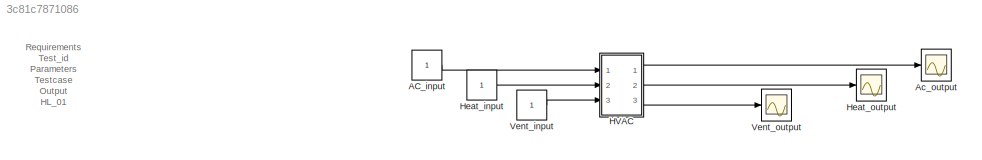
MODEL slx_3c81c7871086
KIND model
CONFIG AbsTol = auto
CONFIG EnableMultiTasking = off
CONFIG FixedStep = auto
CONFIG MaxStep = auto
CONFIG MinStep = auto
CONFIG RelTol = 1e-3
CONFIG SampleTimeConstraint = Unconstrained
CONFIG SolverName = VariableStepAuto
CONFIG StartTime = 0.0
CONFIG StopTime = 7200
BLOCK [Constant] AC_input
BLOCK [Scope] Ac_output
  Floating = off
  NumInputPorts = 1
  Ports = [1]
  ScopeSpecificationString = Simulink.scopes.TimeScopeBlockCfg('CurrentConfiguration', extmgr.ConfigurationSet(extmgr.Configuration('Core','General UI',true),extmgr.Configuration('Core','Source UI',true),extmgr.Configuration('Sources','WiredSimulink',true),extmgr.Configuration('Visuals','Time Domain',true,'SerializedDisplays',{struct('MinYLimReal','-0.125','MaxYLimReal','1.125','YLabelReal','','MinYLimMag','0.00000','MaxYLimM...<+1334ch>
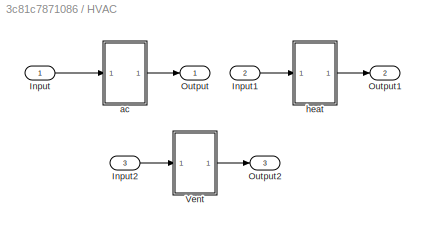
BLOCK [SubSystem] HVAC
  Ports = [3, 3]
  RequestExecContextInheritance = off
BLOCK [Inport] HVAC/Input
BLOCK [Inport] HVAC/Input1
  Port = 2
BLOCK [Inport] HVAC/Input2
  Port = 3
BLOCK [Outport] HVAC/Output
BLOCK [Outport] HVAC/Output1
  Port = 2
BLOCK [Outport] HVAC/Output2
  Port = 3
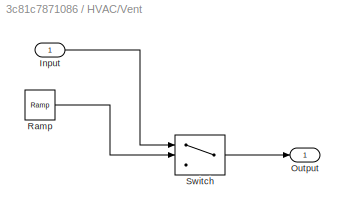
BLOCK [SubSystem] HVAC/Vent
  Ports = [1, 1]
  RequestExecContextInheritance = off
BLOCK [Inport] HVAC/Vent/Input
BLOCK [Outport] HVAC/Vent/Output
BLOCK [Reference] HVAC/Vent/Ramp  REF=simulink/Sources/Ramp
  Ports = [0, 1]
  SourceBlock = simulink/Sources/Ramp
  SourceProductBaseCode = SL
  SourceType = Ramp
BLOCK [Switch] HVAC/Vent/Switch
  Criteria = u2 > Threshold
  InputSameDT = off
  SaturateOnIntegerOverflow = off
  Threshold = 25
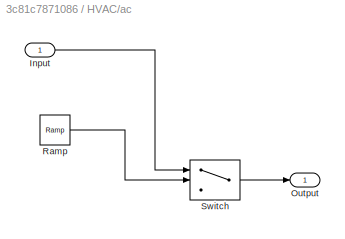
BLOCK [SubSystem] HVAC/ac
  Ports = [1, 1]
  RequestExecContextInheritance = off
BLOCK [Inport] HVAC/ac/Input
BLOCK [Outport] HVAC/ac/Output
BLOCK [Reference] HVAC/ac/Ramp  REF=simulink/Sources/Ramp
  Ports = [0, 1]
  SourceBlock = simulink/Sources/Ramp
  SourceProductBaseCode = SL
  SourceType = Ramp
BLOCK [Switch] HVAC/ac/Switch
  Criteria = u2 > Threshold
  InputSameDT = off
  SaturateOnIntegerOverflow = off
  Threshold = 25
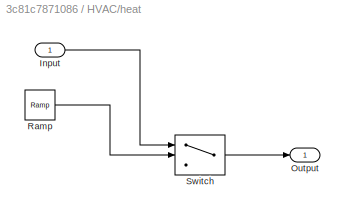
BLOCK [SubSystem] HVAC/heat
  Ports = [1, 1]
  RequestExecContextInheritance = off
BLOCK [Inport] HVAC/heat/Input
BLOCK [Outport] HVAC/heat/Output
BLOCK [Reference] HVAC/heat/Ramp  REF=simulink/Sources/Ramp
  Ports = [0, 1]
  SourceBlock = simulink/Sources/Ramp
  SourceProductBaseCode = SL
  SourceType = Ramp
BLOCK [Switch] HVAC/heat/Switch
  Criteria = u2 > Threshold
  InputSameDT = off
  SaturateOnIntegerOverflow = off
  Threshold = 25
BLOCK [Constant] Heat_input
BLOCK [Scope] Heat_output
  Floating = off
  NumInputPorts = 1
  Ports = [1]
  ScopeSpecificationString = Simulink.scopes.TimeScopeBlockCfg('CurrentConfiguration', extmgr.ConfigurationSet(extmgr.Configuration('Core','General UI',true),extmgr.Configuration('Core','Source UI',true),extmgr.Configuration('Sources','WiredSimulink',true,'DataLoggingVariableName','ScopeData1'),extmgr.Configuration('Visuals','Time Domain',true,'SerializedDisplays',{struct('MinYLimReal','-0.125','MaxYLimReal','1.125','YLabelRe...<+1373ch>
BLOCK [Constant] Vent_input
BLOCK [Scope] Vent_output
  Floating = off
  NumInputPorts = 1
  Ports = [1]
  ScopeSpecificationString = Simulink.scopes.TimeScopeBlockCfg('CurrentConfiguration', extmgr.ConfigurationSet(extmgr.Configuration('Core','General UI',true),extmgr.Configuration('Core','Source UI',true),extmgr.Configuration('Sources','WiredSimulink',true,'DataLoggingVariableName','ScopeData1'),extmgr.Configuration('Visuals','Time Domain',true,'SerializedDisplays',{struct('MinYLimReal','-0.125','MaxYLimReal','1.125','YLabelRe...<+1373ch>
ANNOTATION (root): Requirements Test_id Parameters Testcase Output HL_01 AC 1)if input is equal to one 2)if input is equal to zero on AC off HL_02 Heat 1)if input is equal to one 2)if input is equal to zero on AC off HL_03 Vent 1)if input is equal to one 2)if input is equal to zero on AC off
LINE AC_input:1 -> HVAC:1
LINE HVAC/Input1:1 -> HVAC/heat:1
LINE HVAC/Input2:1 -> HVAC/Vent:1
LINE HVAC/Input:1 -> HVAC/ac:1
LINE HVAC/Vent/Input:1 -> HVAC/Vent/Switch:1
LINE HVAC/Vent/Ramp:1 -> HVAC/Vent/Switch:2
LINE HVAC/Vent/Switch:1 -> HVAC/Vent/Output:1
LINE HVAC/Vent:1 -> HVAC/Output2:1
LINE HVAC/ac/Input:1 -> HVAC/ac/Switch:1
LINE HVAC/ac/Ramp:1 -> HVAC/ac/Switch:2
LINE HVAC/ac/Switch:1 -> HVAC/ac/Output:1
LINE HVAC/ac:1 -> HVAC/Output:1
LINE HVAC/heat/Input:1 -> HVAC/heat/Switch:1
LINE HVAC/heat/Ramp:1 -> HVAC/heat/Switch:2
LINE HVAC/heat/Switch:1 -> HVAC/heat/Output:1
LINE HVAC/heat:1 -> HVAC/Output1:1
LINE HVAC:1 -> Ac_output:1
LINE HVAC:2 -> Heat_output:1
LINE HVAC:3 -> Vent_output:1
LINE Heat_input:1 -> HVAC:2
LINE Vent_input:1 -> HVAC:3
